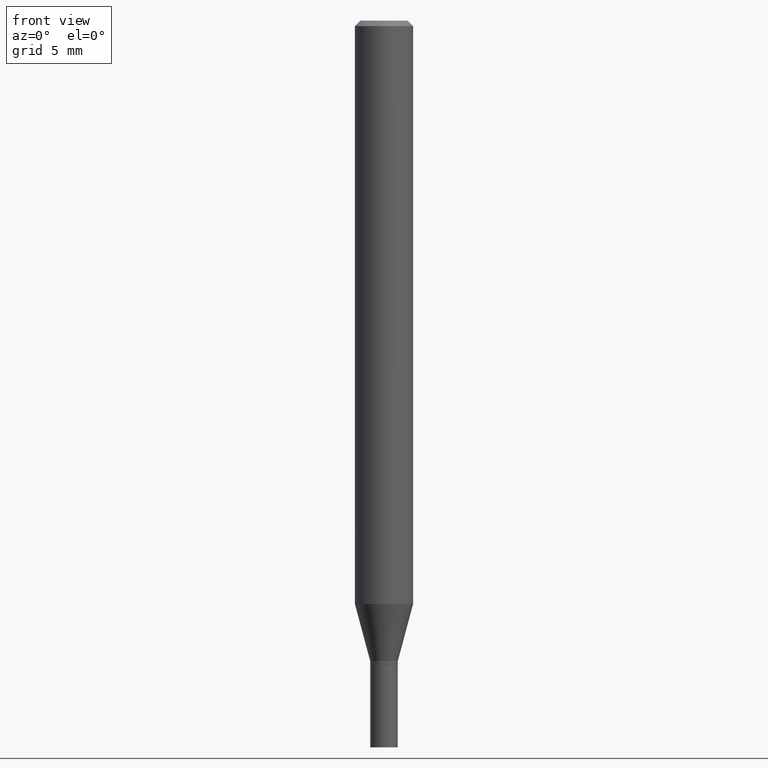
[diagram: clean part render]
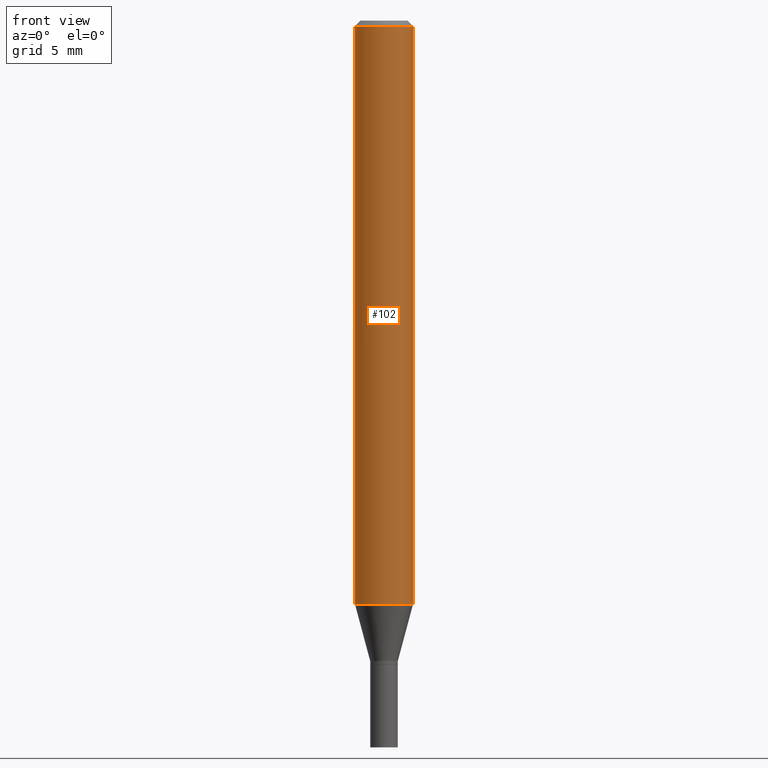
[diagram: same view with one face highlighted and labeled with its STEP entity id]
A machine part, front view. The second image highlights one B-rep face of the part: STEP entity #102.
In plain terms, the highlighted cylindrical surface (edge-blend (fillet) strip) has radius 2.0002 mm, axis along (-0, 0, 1).
Its self-contained STEP definition (entity closure, byte-faithful):
#11 = CARTESIAN_POINT ( 'NONE',  ( -0.07875000000000000056, -4.957615527039885735E-15, -1.580179699107028268 ) ) ;
#31 = DIRECTION ( 'NONE',  ( 1.000000000000000000, -6.982962677686261977E-15, 0.000000000000000000 ) ) ;
#46 = CARTESIAN_POINT ( 'NONE',  ( 0.07875000000000000056, -5.499083108677934443E-16, 3.839989210939299016E-30 ) ) ;
#51 = CARTESIAN_POINT ( 'NONE',  ( 3.668203209277705088E-31, -5.237222008264718399E-17, -0.01499999999999999944 ) ) ;
#66 = ORIENTED_EDGE ( 'NONE', *, *, #356, .F. ) ;
#85 = CIRCLE ( 'NONE', #195, 0.07875000000000000056 ) ;
#94 = VERTEX_POINT ( 'NONE', #11 ) ;
#100 = CARTESIAN_POINT ( 'NONE',  ( 0.07875000000000000056, -6.067076242318758671E-15, -1.580179699107028268 ) ) ;
#102 = ADVANCED_FACE ( 'NONE', ( #207 ), #110, .T. ) ;
#110 = CYLINDRICAL_SURFACE ( 'NONE', #159, 0.07875000000000000056 ) ;
#114 = EDGE_CURVE ( 'NONE', #357, #424, #402, .T. ) ;
#115 = DIRECTION ( 'NONE',  ( -2.445468806185136597E-29, 3.491481338843145583E-15, 1.000000000000000000 ) ) ;
#141 = DIRECTION ( 'NONE',  ( -2.445468806185136597E-29, 3.491481338843145583E-15, 1.000000000000000000 ) ) ;
#159 = AXIS2_PLACEMENT_3D ( 'NONE', #437, #141, #443 ) ;
#166 = LINE ( 'NONE', #275, #246 ) ;
#189 = CIRCLE ( 'NONE', #325, 0.07875000000000000056 ) ;
#195 = AXIS2_PLACEMENT_3D ( 'NONE', #51, #115, #449 ) ;
#202 = EDGE_LOOP ( 'NONE', ( #66, #347, #237, #456 ) ) ;
#207 = FACE_OUTER_BOUND ( 'NONE', #202, .T. ) ;
#237 = ORIENTED_EDGE ( 'NONE', *, *, #114, .T. ) ;
#243 = VERTEX_POINT ( 'NONE', #381 ) ;
#246 = VECTOR ( 'NONE', #431, 39.37007874015748143 ) ;
#257 = DIRECTION ( 'NONE',  ( -2.445468806185136877E-29, 3.491481338843145188E-15, 1.000000000000000000 ) ) ;
#260 = EDGE_CURVE ( 'NONE', #243, #424, #85, .T. ) ;
#275 = CARTESIAN_POINT ( 'NONE',  ( -0.07875000000000000056, 5.595524044110789003E-16, -3.873661383575737792E-30 ) ) ;
#283 = DIRECTION ( 'NONE',  ( -2.445468806185136597E-29, 3.491481338843145583E-15, 1.000000000000000000 ) ) ;
#305 = EDGE_CURVE ( 'NONE', #94, #357, #189, .T. ) ;
#325 = AXIS2_PLACEMENT_3D ( 'NONE', #414, #283, #31 ) ;
#347 = ORIENTED_EDGE ( 'NONE', *, *, #305, .T. ) ;
#356 = EDGE_CURVE ( 'NONE', #94, #243, #166, .T. ) ;
#357 = VERTEX_POINT ( 'NONE', #100 ) ;
#363 = VECTOR ( 'NONE', #257, 39.37007874015748143 ) ;
#381 = CARTESIAN_POINT ( 'NONE',  ( -0.07875000000000000056, -2.225217671355727598E-15, -0.01499999999999999944 ) ) ;
#389 = CARTESIAN_POINT ( 'NONE',  ( 0.07875000000000000056, -6.022805309504406221E-16, -0.01499999999999999944 ) ) ;
#402 = LINE ( 'NONE', #46, #363 ) ;
#414 = CARTESIAN_POINT ( 'NONE',  ( 3.864280162333252269E-29, -5.517167931450965325E-15, -1.580179699107028268 ) ) ;
#424 = VERTEX_POINT ( 'NONE', #389 ) ;
#431 = DIRECTION ( 'NONE',  ( -2.445468806185136877E-29, 3.491481338843145188E-15, 1.000000000000000000 ) ) ;
#437 = CARTESIAN_POINT ( 'NONE',  ( 0.000000000000000000, 0.000000000000000000, 0.000000000000000000 ) ) ;
#443 = DIRECTION ( 'NONE',  ( 1.000000000000000000, -6.982962677686265922E-15, 4.876176775795935232E-29 ) ) ;
#449 = DIRECTION ( 'NONE',  ( 1.000000000000000000, -6.982962677686265922E-15, 0.000000000000000000 ) ) ;
#456 = ORIENTED_EDGE ( 'NONE', *, *, #260, .F. ) ;